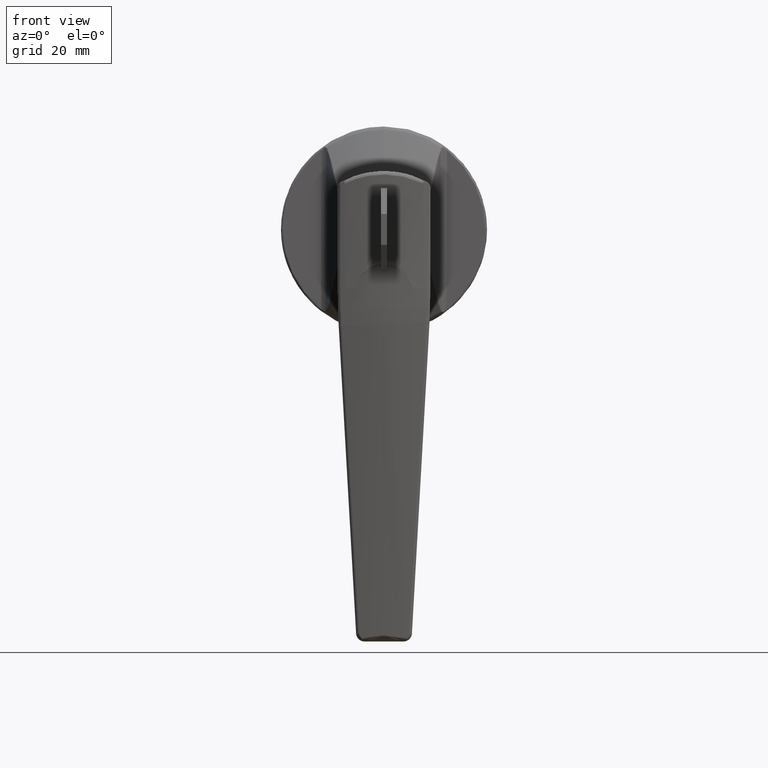
[diagram: clean part render]
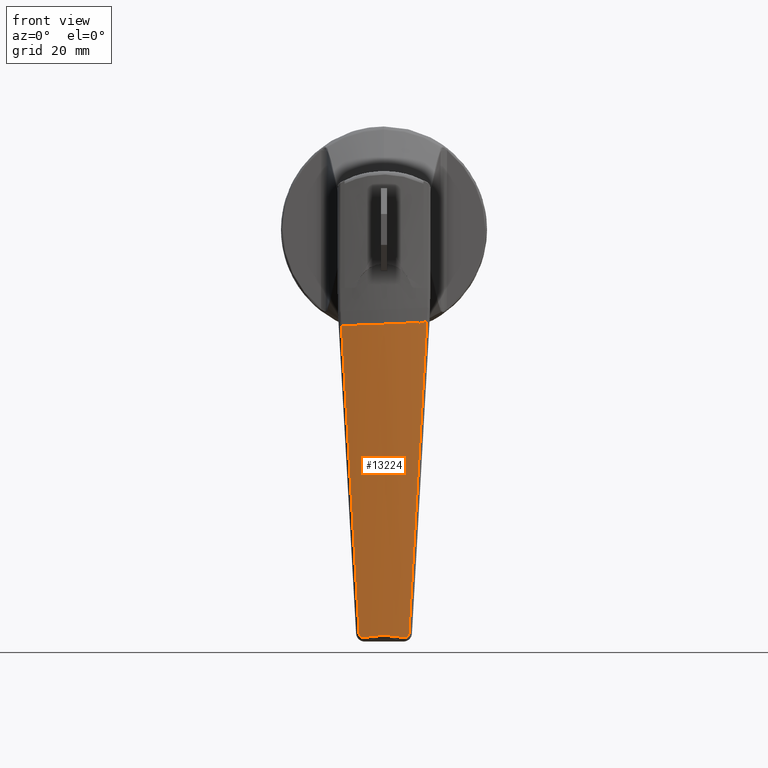
[diagram: same view with one face highlighted and labeled with its STEP entity id]
A machine part, front view. The second image highlights one B-rep face of the part: STEP entity #13224.
In plain terms, the highlighted face is a freeform B-spline surface patch.
Its self-contained STEP definition (entity closure, byte-faithful):
#10513=CARTESIAN_POINT('',(-39.841634125404198,6.479194918565350,-118.891981197941600));
#10514=VERTEX_POINT('',#10513);
#10530=CARTESIAN_POINT('',(-40.254948962157087,0.0,-118.168612447276200));
#10531=VERTEX_POINT('',#10530);
#10550=CARTESIAN_POINT('',(-39.841634125404198,6.479194918565350,-118.891981197941600));
#10551=CARTESIAN_POINT('',(-39.904228190337527,5.939779212623036,-118.847157246335200));
#10552=CARTESIAN_POINT('',(-39.959902409809601,5.400223849260376,-118.796519707159210));
#10553=CARTESIAN_POINT('',(-40.057250784519447,4.320516021465291,-118.686795574505500));
#10554=CARTESIAN_POINT('',(-40.098912787202060,3.780459359537653,-118.627705607331510));
#10555=CARTESIAN_POINT('',(-40.168010170924227,2.700634143645850,-118.503803223755200));
#10556=CARTESIAN_POINT('',(-40.195459379195327,2.160724956919812,-118.438969643474810));
#10557=CARTESIAN_POINT('',(-40.225874012479458,1.350654799238830,-118.339127465272990));
#10558=CARTESIAN_POINT('',(-40.234218677612127,1.080597214015376,-118.305412977183590));
#10559=CARTESIAN_POINT('',(-40.247298078095866,0.540380088869843,-118.237389055624400));
#10560=CARTESIAN_POINT('',(-40.252045964606587,0.270202537605197,-118.202923824866900));
#10561=CARTESIAN_POINT('',(-40.254948962157087,0.0,-118.168612447276200));
#10562=B_SPLINE_CURVE_WITH_KNOTS('',3,(#10550,#10551,#10552,#10553,#10554,#10555,#10556,#10557,#10558,#10559,#10560,#10561),.UNSPECIFIED.,.F.,.U.,(4,2,2,2,2,4),(0.0,0.250000000000000,0.500000000000000,0.750000000000001,0.875000000000000,1.0),.UNSPECIFIED.);
#10563=EDGE_CURVE('',#10514,#10531,#10562,.T.);
#10704=CARTESIAN_POINT('',(-39.855369756130600,7.255790688168430,-117.668293941803800));
#10705=VERTEX_POINT('',#10704);
#10740=CARTESIAN_POINT('',(-39.855369756130600,7.255790688168430,-117.668293941803800));
#10741=CARTESIAN_POINT('',(-39.845531205998441,7.248505163673237,-117.795106350150800));
#10742=CARTESIAN_POINT('',(-39.837950483277382,7.225252189667168,-117.918363385220800));
#10743=CARTESIAN_POINT('',(-39.831141769921992,7.176835895997821,-118.068122212978200));
#10744=CARTESIAN_POINT('',(-39.829915068723473,7.166170617495670,-118.097855102060000));
#10745=CARTESIAN_POINT('',(-39.827734627268264,7.142832185435668,-118.156873178676090));
#10746=CARTESIAN_POINT('',(-39.826783140803762,7.130160399204634,-118.186129225085100));
#10747=CARTESIAN_POINT('',(-39.824373533223181,7.089696467831684,-118.271942896482000));
#10748=CARTESIAN_POINT('',(-39.822309492468129,7.028905102408354,-118.382039296061000));
#10749=CARTESIAN_POINT('',(-39.822414867527662,6.954813512294827,-118.483730696653590));
#10750=CARTESIAN_POINT('',(-39.823295482093052,6.894160600094357,-118.556786032269500));
#10751=CARTESIAN_POINT('',(-39.823725358075279,6.873012370184886,-118.580682174315200));
#10752=CARTESIAN_POINT('',(-39.824840999782779,6.829483081735313,-118.626841924143090));
#10753=CARTESIAN_POINT('',(-39.825525807576810,6.807094642256716,-118.649128138584800));
#10754=CARTESIAN_POINT('',(-39.829556903881723,6.692111072189472,-118.756690333571300));
#10755=CARTESIAN_POINT('',(-39.834695763397043,6.590532332577408,-118.830538453198700));
#10756=CARTESIAN_POINT('',(-39.841634125404198,6.479194918565340,-118.891981197941600));
#10757=B_SPLINE_CURVE_WITH_KNOTS('',3,(#10740,#10741,#10742,#10743,#10744,#10745,#10746,#10747,#10748,#10749,#10750,#10751,#10752,#10753,#10754,#10755,#10756),.UNSPECIFIED.,.F.,.U.,(4,2,2,2,1,2,2,2,4),(0.0,0.249999999999994,0.312499999999992,0.374999999999991,0.499999999999987,0.624999999999984,0.687499999999983,0.749999999999982,1.0),.UNSPECIFIED.);
#10758=EDGE_CURVE('',#10705,#10514,#10757,.T.);
#10841=CARTESIAN_POINT('',(-39.841634125404198,-6.479194918565439,-118.891981197941600));
#10842=VERTEX_POINT('',#10841);
#10880=CARTESIAN_POINT('',(-39.855369756130550,-7.255790688168440,-117.668293941804190));
#10881=VERTEX_POINT('',#10880);
#10895=CARTESIAN_POINT('',(-39.841634125404198,-6.479194918565420,-118.891981197941600));
#10896=CARTESIAN_POINT('',(-39.834695749696259,-6.590532552429095,-118.830538331871300));
#10897=CARTESIAN_POINT('',(-39.829556329758603,-6.692120165685852,-118.756685252096700));
#10898=CARTESIAN_POINT('',(-39.825524988265222,-6.807119834223558,-118.649103715794690));
#10899=CARTESIAN_POINT('',(-39.824840155112717,-6.829511747952989,-118.626812967087600));
#10900=CARTESIAN_POINT('',(-39.823724546107663,-6.873048347813088,-118.580642578975800));
#10901=CARTESIAN_POINT('',(-39.823294921755981,-6.894191709615546,-118.556749956095900));
#10902=CARTESIAN_POINT('',(-39.822414808263687,-6.954832577326659,-118.483704940998000));
#10903=CARTESIAN_POINT('',(-39.822309665715537,-7.028916804024993,-118.382020867379000));
#10904=CARTESIAN_POINT('',(-39.824374085827927,-7.089711519655442,-118.271915134982610));
#10905=CARTESIAN_POINT('',(-39.826784455603303,-7.130179589407001,-118.186086445715010));
#10906=CARTESIAN_POINT('',(-39.827736363641137,-7.142853263212200,-118.156822671271800));
#10907=CARTESIAN_POINT('',(-39.829916640021843,-7.166184939710855,-118.097816085951810));
#10908=CARTESIAN_POINT('',(-39.831143225005860,-7.176847501061870,-118.068088426230400));
#10909=CARTESIAN_POINT('',(-39.837951276292159,-7.225252793434931,-117.918353074759000));
#10910=CARTESIAN_POINT('',(-39.845531201288239,-7.248505160185459,-117.795106410862000));
#10911=CARTESIAN_POINT('',(-39.855369756130550,-7.255790688168510,-117.668293941804190));
#10912=B_SPLINE_CURVE_WITH_KNOTS('',3,(#10895,#10896,#10897,#10898,#10899,#10900,#10901,#10902,#10903,#10904,#10905,#10906,#10907,#10908,#10909,#10910,#10911),.UNSPECIFIED.,.F.,.U.,(4,2,2,2,1,2,2,2,4),(0.0,0.250000000000005,0.312500000000015,0.375000000000025,0.500000000000025,0.625000000000025,0.687500000000012,0.749999999999999,1.0),.UNSPECIFIED.);
#10913=EDGE_CURVE('',#10842,#10881,#10912,.T.);
#11000=CARTESIAN_POINT('',(-40.254948962157087,0.0,-118.168612447276200));
#11001=CARTESIAN_POINT('',(-40.252045964606999,-0.270202537605761,-118.202923824862590));
#11002=CARTESIAN_POINT('',(-40.247298078095866,-0.540380088869853,-118.237389055624400));
#11003=CARTESIAN_POINT('',(-40.234218677612127,-1.080597214015391,-118.305412977183590));
#11004=CARTESIAN_POINT('',(-40.225874012479437,-1.350654799238859,-118.339127465272900));
#11005=CARTESIAN_POINT('',(-40.195459379195341,-2.160724956919848,-118.438969643474810));
#11006=CARTESIAN_POINT('',(-40.168010170924227,-2.700634143645884,-118.503803223755200));
#11007=CARTESIAN_POINT('',(-40.098912787202053,-3.780459359537701,-118.627705607331610));
#11008=CARTESIAN_POINT('',(-40.057250784519432,-4.320516021465348,-118.686795574505500));
#11009=CARTESIAN_POINT('',(-39.959902409809587,-5.400223849260449,-118.796519707159210));
#11010=CARTESIAN_POINT('',(-39.904228190337527,-5.939779212623120,-118.847157246335100));
#11011=CARTESIAN_POINT('',(-39.841634125404198,-6.479194918565439,-118.891981197941600));
#11012=B_SPLINE_CURVE_WITH_KNOTS('',3,(#11000,#11001,#11002,#11003,#11004,#11005,#11006,#11007,#11008,#11009,#11010,#11011),.UNSPECIFIED.,.F.,.U.,(4,2,2,2,2,4),(0.0,0.125000000000000,0.250000000000000,0.500000000000000,0.750000000000000,1.0),.UNSPECIFIED.);
#11013=EDGE_CURVE('',#10531,#10842,#11012,.T.);
#11077=CARTESIAN_POINT('',(-46.581874922183502,12.406647930384841,-28.007752028468548));
#11078=VERTEX_POINT('',#11077);
#11086=CARTESIAN_POINT('',(-46.659828119736602,-12.463210398087901,-26.944267675394350));
#11087=VERTEX_POINT('',#11086);
#11088=CARTESIAN_POINT('',(-46.659828119736602,-12.463210398087901,-26.944267675394350));
#11089=CARTESIAN_POINT('',(-47.086090434158422,-10.413572815774700,-27.068810391868219));
#11090=CARTESIAN_POINT('',(-47.403565910687732,-8.351708758483328,-27.182602453751731));
#11091=CARTESIAN_POINT('',(-47.718728752459363,-5.240928461476618,-27.339641621007221));
#11092=CARTESIAN_POINT('',(-47.796886341899111,-4.200998013915140,-27.389705099103569));
#11093=CARTESIAN_POINT('',(-47.873551689350847,-2.636585508657480,-27.461628607911230));
#11094=CARTESIAN_POINT('',(-47.892341552837003,-2.114361485634714,-27.485074180636090));
#11095=CARTESIAN_POINT('',(-47.916311378387867,-1.068400536521598,-27.530946388361791));
#11096=CARTESIAN_POINT('',(-47.921482159874209,-0.544253496663873,-27.553389560014359));
#11097=CARTESIAN_POINT('',(-47.913147603392552,2.071647936727919,-27.662795982163789));
#11098=CARTESIAN_POINT('',(-47.797637816821272,4.153618960178118,-27.741570421116052));
#11099=CARTESIAN_POINT('',(-47.351855385815043,8.296247538727064,-27.884742998026120));
#11100=CARTESIAN_POINT('',(-47.021585841733987,10.356906001406180,-27.949124305971790));
#11101=CARTESIAN_POINT('',(-46.581874922183502,12.406647930384819,-28.007752028468602));
#11102=B_SPLINE_CURVE_WITH_KNOTS('',3,(#11088,#11089,#11090,#11091,#11092,#11093,#11094,#11095,#11096,#11097,#11098,#11099,#11100,#11101),.UNSPECIFIED.,.F.,.U.,(4,2,2,2,2,2,4),(0.0,0.250000000000000,0.375000000000000,0.437500000000000,0.500000000000000,0.750000000000000,1.0),.UNSPECIFIED.);
#11103=EDGE_CURVE('',#11087,#11078,#11102,.T.);
#11278=CARTESIAN_POINT('',(-46.560155577355303,-12.389688968940201,-28.306942944188901));
#11279=VERTEX_POINT('',#11278);
#11303=CARTESIAN_POINT('',(-46.560155577355303,-12.389688968940201,-28.306942944188901));
#11304=CARTESIAN_POINT('',(-46.593054947806053,-12.415781006323380,-27.852779607398389));
#11305=CARTESIAN_POINT('',(-46.626277093391323,-12.440288014280110,-27.398554361646649));
#11306=CARTESIAN_POINT('',(-46.659828119736602,-12.463210398087920,-26.944267675394350));
#11307=QUASI_UNIFORM_CURVE('',3,(#11303,#11304,#11305,#11306),.UNSPECIFIED.,.F.,.U.);
#11308=EDGE_CURVE('',#11279,#11087,#11307,.T.);
#11501=CARTESIAN_POINT('',(-46.560155577582400,12.389688969120140,-28.306942941055201));
#11502=VERTEX_POINT('',#11501);
#11516=CARTESIAN_POINT('',(-46.581874922183502,12.406647930384841,-28.007752028468548));
#11517=CARTESIAN_POINT('',(-46.574619521502598,12.401071356374761,-28.107485499569691));
#11518=CARTESIAN_POINT('',(-46.567379758220511,12.395418367240190,-28.207215866066001));
#11519=CARTESIAN_POINT('',(-46.560155577582400,12.389688969120140,-28.306942941055201));
#11520=B_SPLINE_CURVE_WITH_KNOTS('',3,(#11516,#11517,#11518,#11519),.UNSPECIFIED.,.F.,.U.,(4,4),(0.0,0.000300457215709),.UNSPECIFIED.);
#11521=EDGE_CURVE('',#11078,#11502,#11520,.T.);
#11582=CARTESIAN_POINT('',(-39.855369756130550,-7.255790688168440,-117.668293941804190));
#11583=CARTESIAN_POINT('',(-43.346836612512142,-9.841249619058642,-72.665593871718954));
#11584=CARTESIAN_POINT('',(-46.560155577355303,-12.389688968940201,-28.306942944188901));
#11592=(BOUNDED_CURVE()B_SPLINE_CURVE(2,(#11582,#11583,#11584),.UNSPECIFIED.,.F.,.U.)CURVE()GEOMETRIC_REPRESENTATION_ITEM()QUASI_UNIFORM_CURVE()RATIONAL_B_SPLINE_CURVE((1.0,0.999059134450703,1.0))REPRESENTATION_ITEM(''));
#11593=EDGE_CURVE('',#10881,#11279,#11592,.T.);
#11675=CARTESIAN_POINT('',(-46.560155577582400,12.389688969120140,-28.306942941055201));
#11676=CARTESIAN_POINT('',(-43.346836603125205,9.841249703721479,-72.665593860327178));
#11677=CARTESIAN_POINT('',(-39.855369756130600,7.255790688168430,-117.668293941803800));
#11685=(BOUNDED_CURVE()B_SPLINE_CURVE(2,(#11675,#11676,#11677),.UNSPECIFIED.,.F.,.U.)CURVE()GEOMETRIC_REPRESENTATION_ITEM()QUASI_UNIFORM_CURVE()RATIONAL_B_SPLINE_CURVE((1.0,0.999059134389227,1.0))REPRESENTATION_ITEM(''));
#11686=EDGE_CURVE('',#11502,#10705,#11685,.T.);
#13199=CARTESIAN_POINT('',(-46.598179187157122,13.616855979472788,-24.625937132312970));
#13200=CARTESIAN_POINT('',(-38.432062214468843,13.616855979472788,-121.143663387999850));
#13201=CARTESIAN_POINT('',(-49.767152672995174,-0.030841255098925,-24.894055841410491));
#13202=CARTESIAN_POINT('',(-41.601035700306902,-0.030841255098927,-121.411782097097270));
#13203=CARTESIAN_POINT('',(-46.584566705106049,-13.675347856555511,-24.624785415161860));
#13204=CARTESIAN_POINT('',(-38.418449732417784,-13.675347856555511,-121.142511670848710));
#13212=(BOUNDED_SURFACE()B_SPLINE_SURFACE(1,2,((#13199,#13201,#13203),(#13200,#13202,#13204)),.UNSPECIFIED.,.F.,.F.,.U.)B_SPLINE_SURFACE_WITH_KNOTS((2,2),(3,3),(0.0,96.862567320814520),(0.0,27.654569237893160),.UNSPECIFIED.)GEOMETRIC_REPRESENTATION_ITEM()RATIONAL_B_SPLINE_SURFACE(((0.999191793192118,0.972084370106406,0.997299365568502),(0.999191793192118,0.972084370106406,0.997299365568502)))REPRESENTATION_ITEM('')SURFACE());
#13213=ORIENTED_EDGE('',*,*,#11013,.T.);
#13214=ORIENTED_EDGE('',*,*,#10913,.T.);
#13215=ORIENTED_EDGE('',*,*,#11593,.T.);
#13216=ORIENTED_EDGE('',*,*,#11308,.T.);
#13217=ORIENTED_EDGE('',*,*,#11103,.T.);
#13218=ORIENTED_EDGE('',*,*,#11521,.T.);
#13219=ORIENTED_EDGE('',*,*,#11686,.T.);
#13220=ORIENTED_EDGE('',*,*,#10758,.T.);
#13221=ORIENTED_EDGE('',*,*,#10563,.T.);
#13222=EDGE_LOOP('',(#13213,#13214,#13215,#13216,#13217,#13218,#13219,#13220,#13221));
#13223=FACE_OUTER_BOUND('',#13222,.T.);
#13224=ADVANCED_FACE('',(#13223),#13212,.T.);